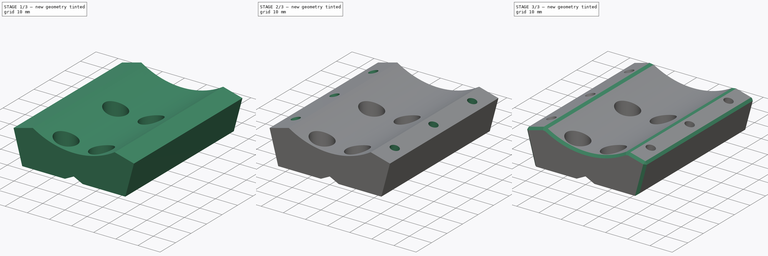
[diagram: build sequence overview — one tinted view per stage of 3, left to right]
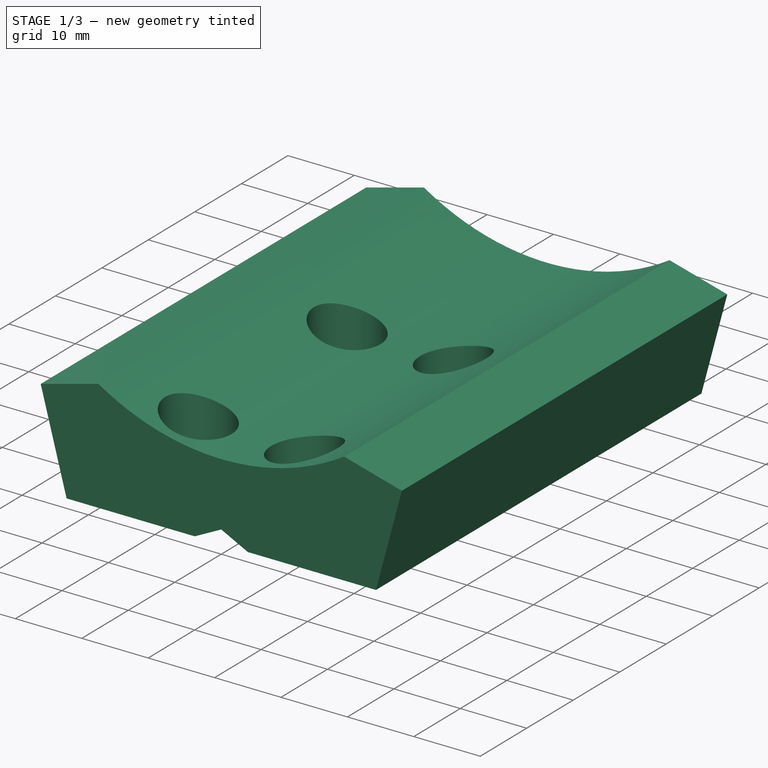
[diagram: stage 1 of 3 — iso view after this stage's code; geometry added in this stage tinted green]
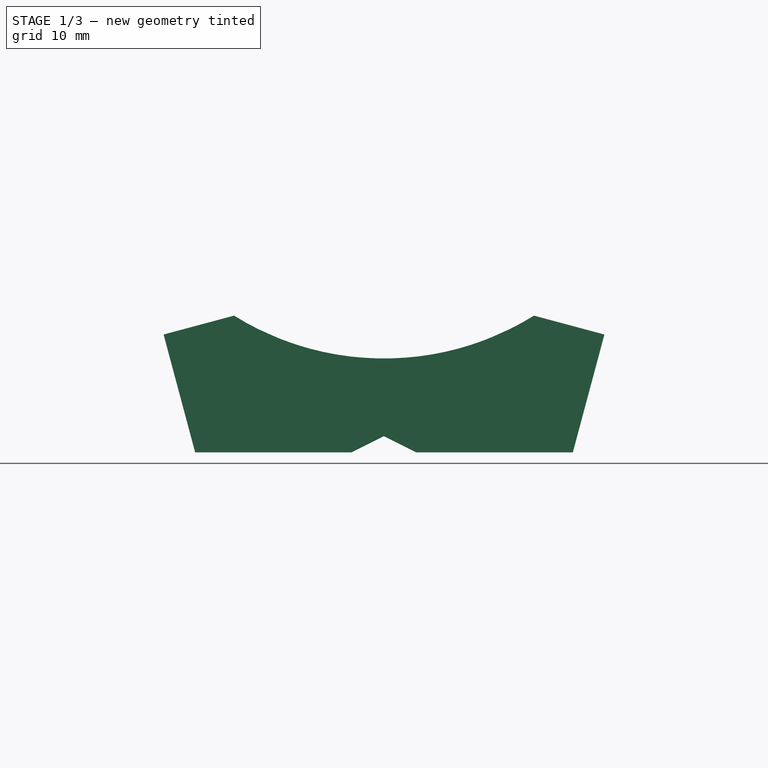
[diagram: stage 1 of 3 — front view after this stage's code; geometry added in this stage tinted green]
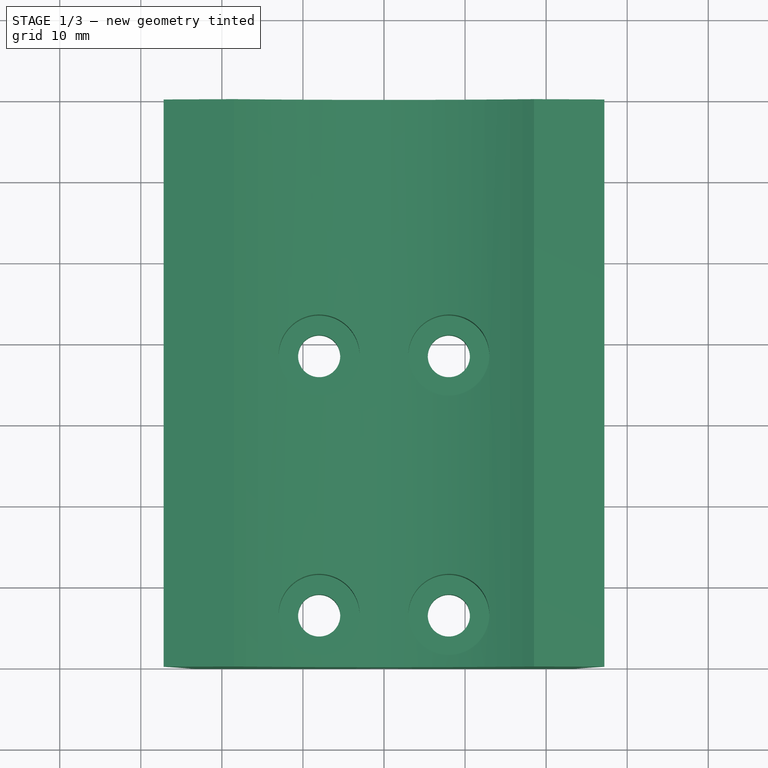
[diagram: stage 1 of 3 — top view after this stage's code; geometry added in this stage tinted green]
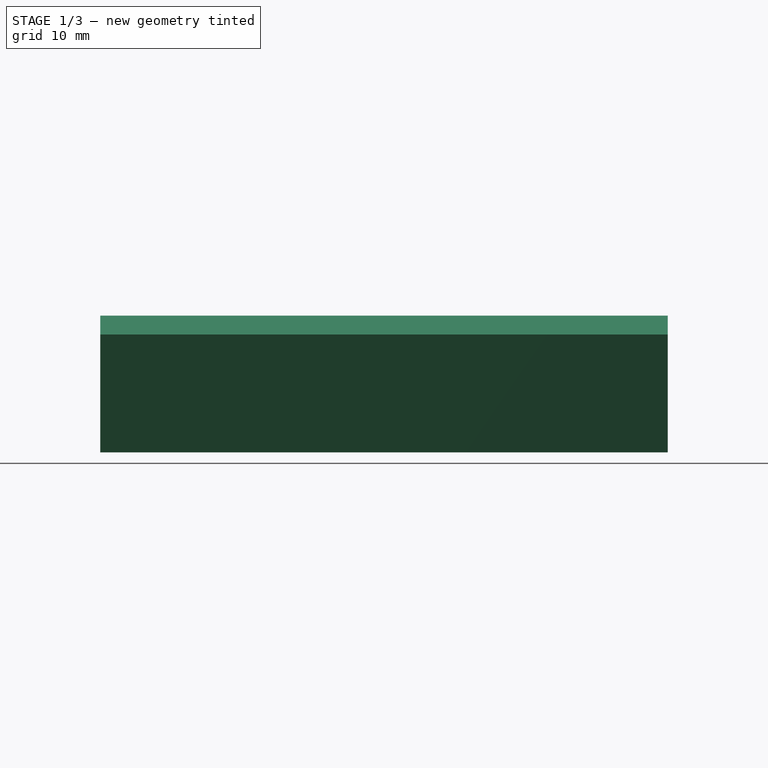
[diagram: stage 1 of 3 — right view after this stage's code; geometry added in this stage tinted green]
FCSTD DOCUMENT  (FreeCAD 0.19R24267 +99 (Git))
Label: tool_mount
License: All rights reserved
LicenseURL: http://en.wikipedia.org/wiki/All_rights_reserved
objects: Sketcher::SketchObject×7, PartDesign::Pocket×6, PartDesign::Plane×2, PartDesign::Pad×1, PartDesign::Chamfer×1, PartDesign::Body×1
note: 26 computed .brp shape members not serialized (recipe doc carries the construction recipe); baked Part::Feature solids carry a one-line shape summary decoded from their .brp

FEATURE [Sketcher::SketchObject] Sketch
  FullyConstrained = true
  MapMode = 5
  Placement = pos=(0,0,0) rot=(1,0,0;1.5708rad)
  Support = -> [XZ_Plane]
  sketch-geometry (15):
    g0: LineSegment StartX=-12.5 StartY=0 StartZ=0 EndX=-4 EndY=0 EndZ=0
    g1: LineSegment StartX=-4 StartY=0 StartZ=0 EndX=0 EndY=2 EndZ=0
    g2: LineSegment StartX=0 StartY=2 StartZ=0 EndX=4 EndY=0 EndZ=0
    g3: LineSegment StartX=4 StartY=0 StartZ=0 EndX=12.5 EndY=0 EndZ=0
    g4: ArcOfCircle CenterX=0 CenterY=46.5809 CenterZ=0 NormalX=0 NormalY=0 NormalZ=1 AngleXU=0 Radius=35 StartAngle=4.15547 EndAngle=5.26931
    g5: LineSegment StartX=-18.5 StartY=16.8698 StartZ=0 EndX=18.5 EndY=16.8698 EndZ=0
    g6: LineSegment StartX=-18.5 StartY=16.8698 StartZ=0 EndX=-27.1933 EndY=14.5404 EndZ=0
    g7: LineSegment StartX=18.5 StartY=16.8698 StartZ=0 EndX=27.1933 EndY=14.5404 EndZ=0
    g8: LineSegment StartX=-27.1933 StartY=14.5404 StartZ=0 EndX=-23.2972 EndY=-1.8e-15 EndZ=0
    g9: LineSegment StartX=27.1933 StartY=14.5404 StartZ=0 EndX=23.2972 EndY=0 EndZ=0
    g10: LineSegment StartX=12.5 StartY=0 StartZ=0 EndX=23.2972 EndY=0 EndZ=0
    g11: LineSegment StartX=-12.5 StartY=0 StartZ=0 EndX=-23.2972 EndY=-1.8e-15 EndZ=0
    g12: Circle CenterX=-8 CenterY=0 CenterZ=0 NormalX=0 NormalY=0 NormalZ=1 AngleXU=0 Radius=2.6
    g13: Circle CenterX=8 CenterY=0 CenterZ=0 NormalX=0 NormalY=0 NormalZ=1 AngleXU=0 Radius=2.6
    g14: LineSegment StartX=-5.4 StartY=0 StartZ=0 EndX=-5.4 EndY=12 EndZ=0
  constraints (44):
    c: PointOnObject(g0,g-1)
    c: PointOnObject(g0,g-1)
    c: Coincident(g1,g0)
    c: PointOnObject(g1,g-2)
    c: Coincident(g2,g1)
    c: PointOnObject(g2,g-1)
    c: Coincident(g3,g2)
    c: DistanceX(g0,g3) = 25
    c: Symmetric(g0,g3,g-2)
    c: Equal(g1,g2)
    c: DistanceY(g-1,g1) = 2
    c: DistanceX(g0,g2) = 8
    c: PointOnObject(g4,g-2)
    c: Radius(g4) = 35
    c: Horizontal(g5)
    c: DistanceX(g5,g5) = 37
    c: Coincident(g4,g5)
    c: Coincident(g4,g5)
    c: Coincident(g6,g4)
    c: Coincident(g7,g4)
    c: Distance(g6) = 9
    c: Equal(g6,g7)
    c: Angle(g6,g5) = 2.87979
    c: Angle(g5,g7) = 2.87979
    c: Coincident(g8,g6)
    c: Coincident(g9,g7)
    c: Perpendicular(g6,g8)
    c: Equal(g9,g8)
    c: Perpendicular(g9,g7)
    c: Horizontal(g9,g3)
    c: Coincident(g10,g3)
    c: Coincident(g10,g9)
    c: Coincident(g11,g0)
    c: Coincident(g11,g8)
    c: PointOnObject(g12,g0)
    c: Diameter(g12) = 5.2
    c: Equal(g13,g12)
    c: DistanceX(g12,g13) = 16
    c: PointOnObject(g14,g12)
    c: PointOnObject(g14,g4)
    c: Vertical(g14)
    c: PointOnObject(g14,g0)
    c: DistanceY(g14,g14) = 12
    c: Symmetric(g12,g13,g-2)
FEATURE [PartDesign::Pad] Pad
  Direction = (1,1,1)
  Length = 70
  Length2 = 100
  Placement = pos=(0,0,0) rot=(1,0,0;1.5708rad)
  Profile = -> Sketch
  Type = 0
FEATURE [Sketcher::SketchObject] Sketch001
  ExternalGeometry = -> [Pad]
  FullyConstrained = true
  MapMode = 5
  Placement = pos=(0,0,0) rot=(1,0,0;3.14159rad)
  Support = -> [Pad]
  sketch-geometry (5):
    g0: Circle CenterX=-8 CenterY=63.5 CenterZ=0 NormalX=0 NormalY=0 NormalZ=1 AngleXU=0 Radius=2.6
    g1: Circle CenterX=8 CenterY=63.5 CenterZ=0 NormalX=0 NormalY=0 NormalZ=1 AngleXU=0 Radius=2.6
    g2: Circle CenterX=-8 CenterY=31.5 CenterZ=0 NormalX=0 NormalY=0 NormalZ=1 AngleXU=0 Radius=2.6
    g3: Circle CenterX=8 CenterY=31.5 CenterZ=0 NormalX=0 NormalY=0 NormalZ=1 AngleXU=0 Radius=2.6
    g4: Circle CenterX=-8 CenterY=63.5 CenterZ=0 NormalX=0 NormalY=0 NormalZ=1 AngleXU=0 Radius=6.5
  constraints (13):
    c: Diameter(g0) = 5.2
    c: Equal(g0,g1)
    c: Equal(g1,g2)
    c: Equal(g2,g3)
    c: Symmetric(g0,g1,g-2)
    c: Vertical(g0,g2)
    c: Horizontal(g2,g3)
    c: Vertical(g1,g3)
    c: DistanceX(g0,g1) = 16
    c: DistanceY(g2,g0) = 32
    c: Coincident(g4,g0)
    c: Diameter(g4) = 13
    c: Tangent(g4,g-3)
FEATURE [PartDesign::Pocket] Pocket
  BaseFeature = -> Pad
  Length = 5
  Length2 = 100
  Placement = pos=(0,0,0) rot=(1,0,0;1.5708rad)
  Profile = -> Sketch001
  Type = 1
FEATURE [Sketcher::SketchObject] Sketch002
  ExternalGeometry = -> [Pocket]
  FullyConstrained = true
  MapMode = 5
  Placement = pos=(0,0,5) rot=(1,0,0;3.14159rad)
  sketch-geometry (4):
    g0: Circle CenterX=-8 CenterY=63.5 CenterZ=0 NormalX=0 NormalY=0 NormalZ=1 AngleXU=0 Radius=5
    g1: Circle CenterX=8 CenterY=63.5 CenterZ=0 NormalX=0 NormalY=0 NormalZ=1 AngleXU=0 Radius=5
    g2: Circle CenterX=8 CenterY=31.5 CenterZ=0 NormalX=0 NormalY=0 NormalZ=1 AngleXU=0 Radius=5
    g3: Circle CenterX=-8 CenterY=31.5 CenterZ=0 NormalX=0 NormalY=0 NormalZ=1 AngleXU=0 Radius=5
  constraints (8):
    c: Coincident(g0,g-3)
    c: Coincident(g1,g-4)
    c: Coincident(g2,g-6)
    c: Coincident(g3,g-5)
    c: Diameter(g0) = 10
    c: Equal(g0,g1)
    c: Equal(g1,g3)
    c: Equal(g3,g2)
FEATURE [PartDesign::Pocket] Pocket001
  BaseFeature = -> Pocket
  Length = 5
  Length2 = 100
  Placement = pos=(0,0,0) rot=(1,0,0;1.5708rad)
  Profile = -> Sketch002
  Type = 1
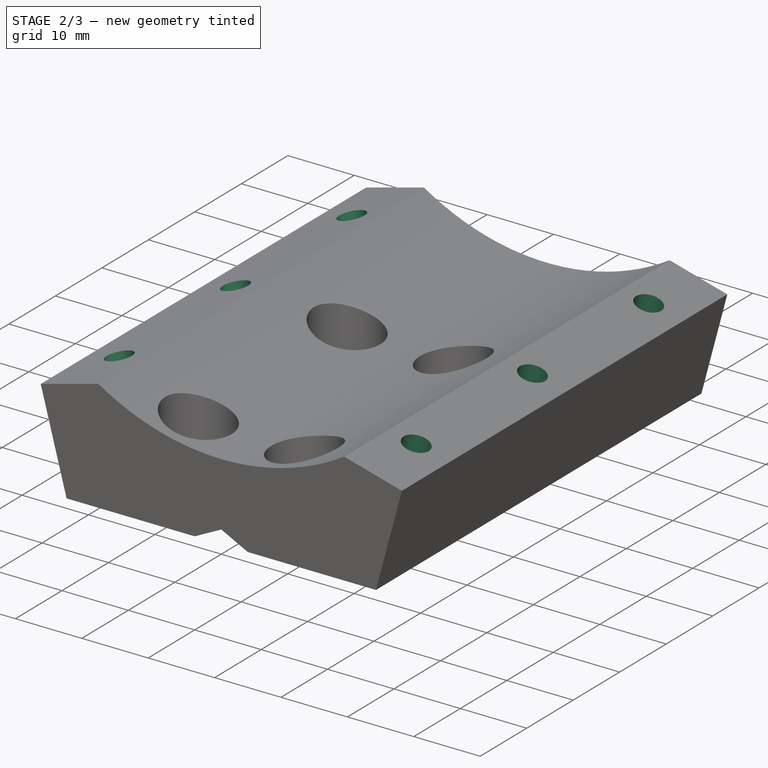
[diagram: stage 2 of 3 — iso view after this stage's code; geometry added in this stage tinted green]
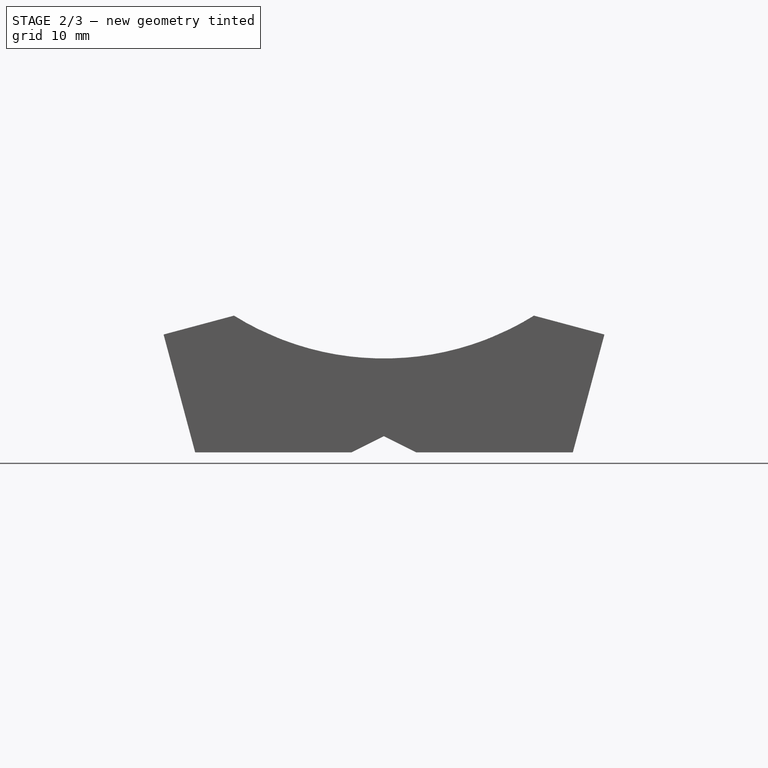
[diagram: stage 2 of 3 — front view after this stage's code; geometry added in this stage tinted green]
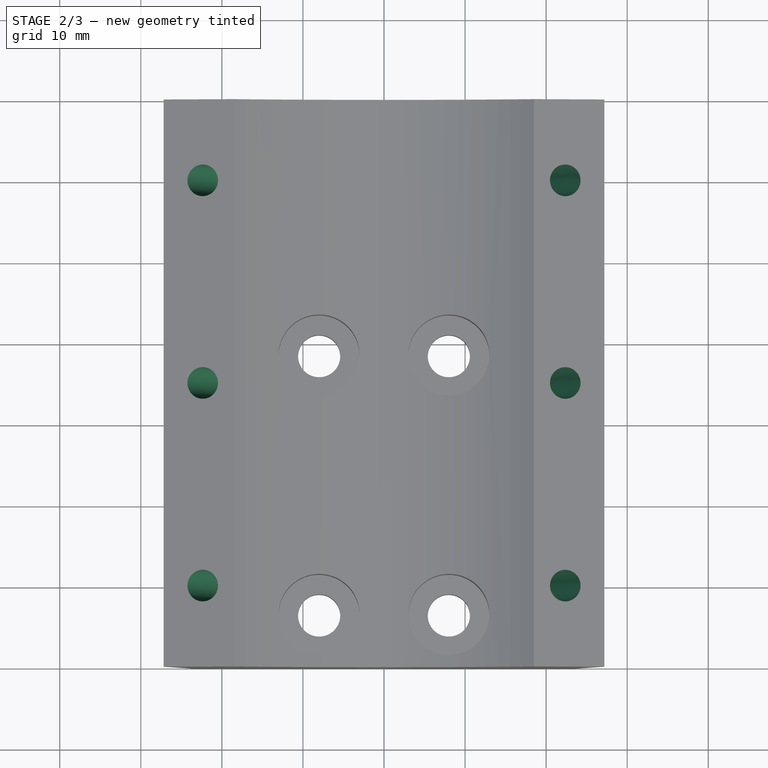
[diagram: stage 2 of 3 — top view after this stage's code; geometry added in this stage tinted green]
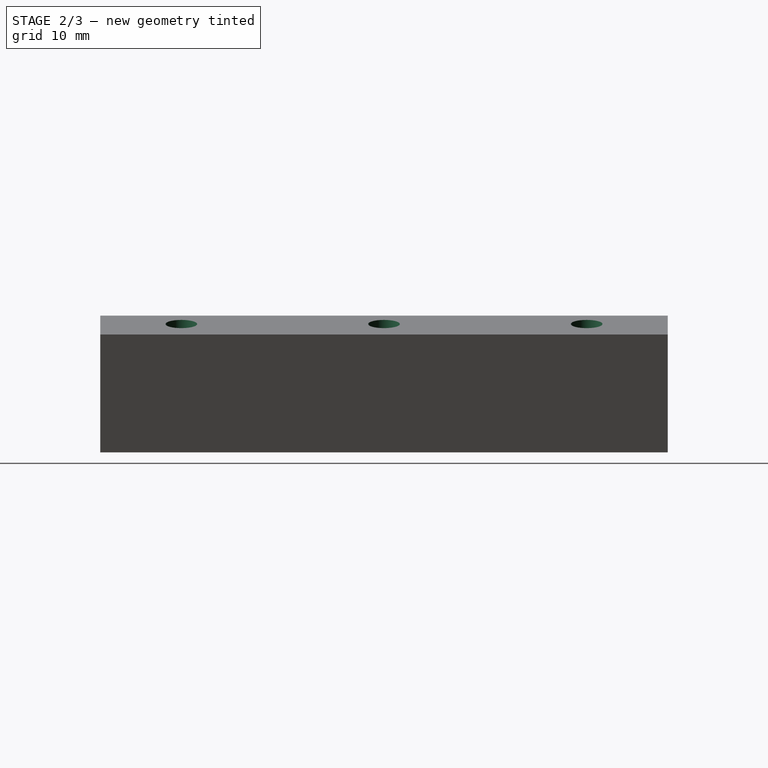
[diagram: stage 2 of 3 — right view after this stage's code; geometry added in this stage tinted green]
FEATURE [Sketcher::SketchObject] Sketch003
  ExternalGeometry = -> [Pocket001]
  FullyConstrained = true
  MapMode = 5
  Placement = pos=(-5.45672,3.17e-14,20.3647) rot=(-0.130526,0,0.991445;3.14159rad)
  Support = -> [Pocket001]
  sketch-geometry (5):
    g0: LineSegment StartX=17.5034 StartY=70 StartZ=0 EndX=17.5034 EndY=0 EndZ=0
    g1: LineSegment StartX=13.5034 StartY=35 StartZ=0 EndX=22.5034 EndY=35 EndZ=0
    g2: Circle CenterX=17.5034 CenterY=60 CenterZ=0 NormalX=0 NormalY=0 NormalZ=1 AngleXU=0 Radius=1.95
    g3: Circle CenterX=17.5034 CenterY=35 CenterZ=0 NormalX=0 NormalY=0 NormalZ=1 AngleXU=0 Radius=1.95
    g4: Circle CenterX=17.5034 CenterY=10 CenterZ=0 NormalX=0 NormalY=0 NormalZ=1 AngleXU=0 Radius=1.95
  constraints (16):
    c: PointOnObject(g0,g-1)
    c: Vertical(g0)
    c: Horizontal(g1)
    c: Symmetric(g-4,g-4,g1)
    c: Vertical(g1,g-3)
    c: PointOnObject(g2,g0)
    c: Diameter(g2) = 3.9
    c: PointOnObject(g3,g0)
    c: PointOnObject(g4,g0)
    c: Equal(g2,g3)
    c: Equal(g3,g4)
    c: DistanceY(g3,g2) = 25
    c: DistanceY(g4,g3) = 25
    c: PointOnObject(g3,g1)
    c: PointOnObject(g0,g-3)
    c: DistanceX(g-4,g0) = 4
FEATURE [PartDesign::Pocket] Pocket002
  BaseFeature = -> Pocket001
  Length = 5
  Length2 = 100
  Placement = pos=(0,0,0) rot=(1,0,0;1.5708rad)
  Profile = -> Sketch003
  Type = 1
FEATURE [Sketcher::SketchObject] Sketch004
  ExternalGeometry = -> [Pocket002]
  FullyConstrained = true
  MapMode = 5
  Placement = pos=(5.45672,4.07e-14,20.3647) rot=(0.130526,0,0.991445;3.14159rad)
  Support = -> [Pocket002]
  sketch-geometry (5):
    g0: LineSegment StartX=-17.5034 StartY=70 StartZ=0 EndX=-17.5034 EndY=0 EndZ=0
    g1: LineSegment StartX=-13.5034 StartY=35 StartZ=0 EndX=-22.5034 EndY=35 EndZ=0
    g2: Circle CenterX=-17.5034 CenterY=60 CenterZ=0 NormalX=0 NormalY=0 NormalZ=1 AngleXU=0 Radius=1.95
    g3: Circle CenterX=-17.5034 CenterY=35 CenterZ=0 NormalX=0 NormalY=0 NormalZ=1 AngleXU=0 Radius=1.95
    g4: Circle CenterX=-17.5034 CenterY=10 CenterZ=0 NormalX=0 NormalY=0 NormalZ=1 AngleXU=0 Radius=1.95
  constraints (16):
    c: Vertical(g0)
    c: Horizontal(g1)
    c: Horizontal(g0,g-4)
    c: Symmetric(g-4,g-4,g1)
    c: Vertical(g1,g-3)
    c: PointOnObject(g2,g0)
    c: PointOnObject(g3,g0)
    c: PointOnObject(g4,g0)
    c: Diameter(g2) = 3.9
    c: Equal(g2,g3)
    c: Equal(g3,g4)
    c: DistanceY(g3,g2) = 25
    c: DistanceY(g4,g3) = 25
    c: PointOnObject(g3,g1)
    c: PointOnObject(g0,g-3)
    c: DistanceX(g0,g-4) = 4
FEATURE [PartDesign::Pocket] Pocket003
  BaseFeature = -> Pocket002
  Length = 5
  Length2 = 100
  Placement = pos=(0,0,0) rot=(1,0,0;1.5708rad)
  Profile = -> Sketch004
  Type = 1
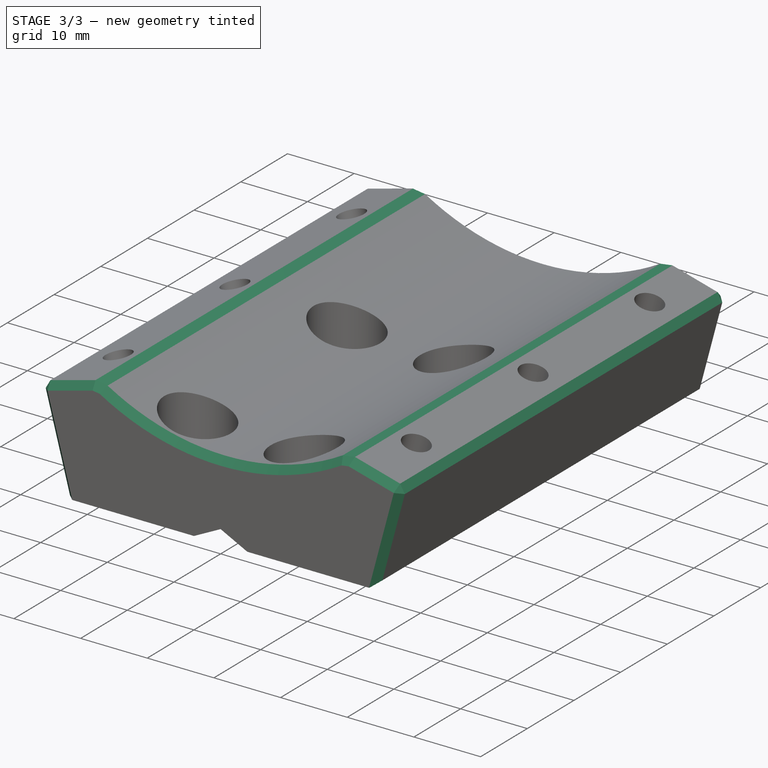
[diagram: stage 3 of 3 — iso view after this stage's code; geometry added in this stage tinted green]
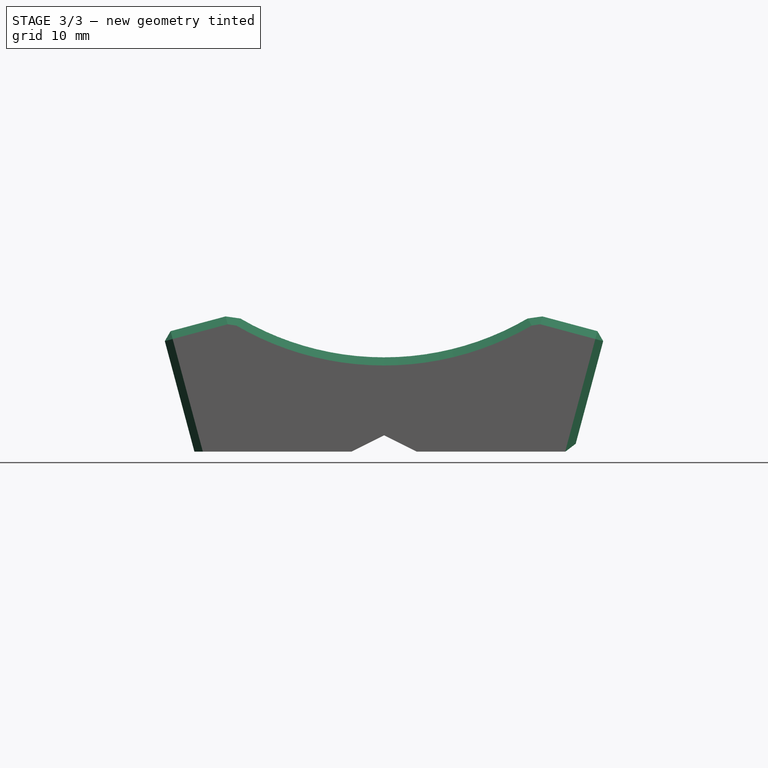
[diagram: stage 3 of 3 — front view after this stage's code; geometry added in this stage tinted green]
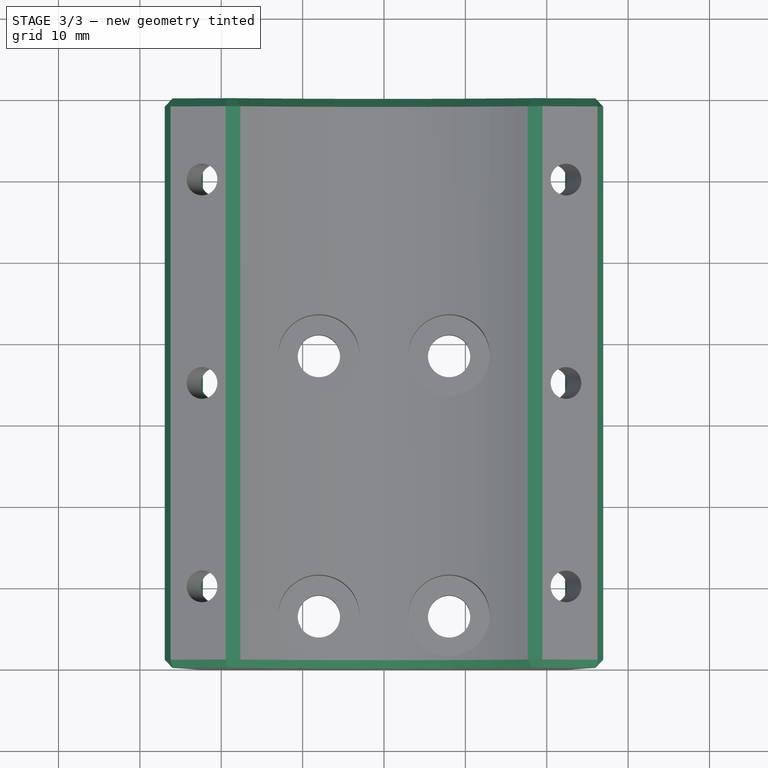
[diagram: stage 3 of 3 — top view after this stage's code; geometry added in this stage tinted green]
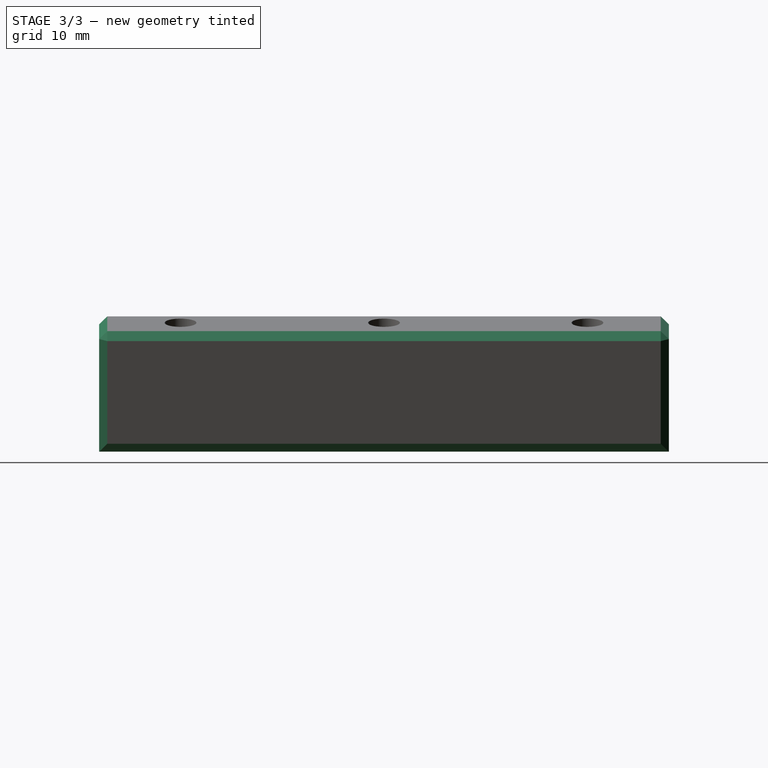
[diagram: stage 3 of 3 — right view after this stage's code; geometry added in this stage tinted green]
FEATURE [PartDesign::Plane] DatumPlane
  AttachmentOffset = pos=(0,0,-6.75) rot=(0,0,1;0rad)
  Length = 81.2479
  MapMode = 5
  Placement = pos=(3.70969,3.38e-14,13.8447) rot=(0.130526,0,0.991445;3.14159rad)
  ResizeMode = 0
  Support = -> [Pocket003]
  Width = 110.773
FEATURE [Sketcher::SketchObject] Sketch005
  ExternalGeometry = -> [Pocket003]
  FullyConstrained = true
  MapMode = 5
  Placement = pos=(3.70969,3.38e-14,13.8447) rot=(0.130526,0,0.991445;3.14159rad)
  Support = -> [DatumPlane]
  sketch-geometry (21):
    g0: LineSegment StartX=-13.5034 StartY=62.3094 StartZ=0 EndX=-17.5034 EndY=64.6188 EndZ=0
    g1: LineSegment StartX=-17.5034 StartY=64.6188 StartZ=0 EndX=-21.5034 EndY=62.3094 EndZ=0
    g2: LineSegment StartX=-21.5034 StartY=62.3094 StartZ=0 EndX=-21.5034 EndY=57.6906 EndZ=0
    g3: LineSegment StartX=-21.5034 StartY=57.6906 StartZ=0 EndX=-17.5034 EndY=55.3812 EndZ=0
    g4: LineSegment StartX=-17.5034 StartY=55.3812 StartZ=0 EndX=-13.5034 EndY=57.6906 EndZ=0
    g5: LineSegment StartX=-13.5034 StartY=57.6906 StartZ=0 EndX=-13.5034 EndY=62.3094 EndZ=0
    g6: Circle CenterX=-17.5034 CenterY=60 CenterZ=0 NormalX=0 NormalY=0 NormalZ=1 AngleXU=0 Radius=4.6188
    g7: LineSegment StartX=-13.5034 StartY=37.3094 StartZ=0 EndX=-17.5034 EndY=39.6188 EndZ=0
    g8: LineSegment StartX=-17.5034 StartY=39.6188 StartZ=0 EndX=-21.5034 EndY=37.3094 EndZ=0
    g9: LineSegment StartX=-21.5034 StartY=37.3094 StartZ=0 EndX=-21.5034 EndY=32.6906 EndZ=0
    g10: LineSegment StartX=-21.5034 StartY=32.6906 StartZ=0 EndX=-17.5034 EndY=30.3812 EndZ=0
    g11: LineSegment StartX=-17.5034 StartY=30.3812 StartZ=0 EndX=-13.5034 EndY=32.6906 EndZ=0
    g12: LineSegment StartX=-13.5034 StartY=32.6906 StartZ=0 EndX=-13.5034 EndY=37.3094 EndZ=0
    g13: Circle CenterX=-17.5034 CenterY=35 CenterZ=0 NormalX=0 NormalY=0 NormalZ=1 AngleXU=0 Radius=4.6188
    g14: LineSegment StartX=-13.5034 StartY=12.3094 StartZ=0 EndX=-17.5034 EndY=14.6188 EndZ=0
    g15: LineSegment StartX=-17.5034 StartY=14.6188 StartZ=0 EndX=-21.5034 EndY=12.3094 EndZ=0
    g16: LineSegment StartX=-21.5034 StartY=12.3094 StartZ=0 EndX=-21.5034 EndY=7.6906 EndZ=0
    g17: LineSegment StartX=-21.5034 StartY=7.6906 StartZ=0 EndX=-17.5034 EndY=5.3812 EndZ=0
    g18: LineSegment StartX=-17.5034 StartY=5.3812 StartZ=0 EndX=-13.5034 EndY=7.6906 EndZ=0
    g19: LineSegment StartX=-13.5034 StartY=7.6906 StartZ=0 EndX=-13.5034 EndY=12.3094 EndZ=0
    g20: Circle CenterX=-17.5034 CenterY=10 CenterZ=0 NormalX=0 NormalY=0 NormalZ=1 AngleXU=0 Radius=4.6188
  constraints (48):
    c: Coincident(g0,g1)
    c: Coincident(g1,g2)
    c: Coincident(g2,g3)
    c: Coincident(g3,g4)
    c: Coincident(g4,g5)
    c: Coincident(g5,g0)
    c: Equal(g0, g1-g5) x5
    c: PointOnObject(g0,g6)
    c: PointOnObject(g1,g6)
    c: PointOnObject(g2,g6)
    c: PointOnObject(g3,g6)
    c: PointOnObject(g4,g6)
    c: PointOnObject(g5,g6)
    c: Coincident(g6,g-3)
    c: Coincident(g7,g8)
    c: Coincident(g8,g9)
    c: Coincident(g9,g10)
    c: Coincident(g10,g11)
    c: Coincident(g11,g12)
    c: Coincident(g12,g7)
    c: Equal(g7, g8-g12) x5
    c: PointOnObject(g7,g13)
    c: PointOnObject(g8,g13)
    c: PointOnObject(g9,g13)
    c: PointOnObject(g10,g13)
    c: PointOnObject(g11,g13)
    c: PointOnObject(g12,g13)
    c: Coincident(g13,g-4)
    c: Coincident(g14,g15)
    c: Coincident(g15,g16)
    c: Coincident(g16,g17)
    c: Coincident(g17,g18)
    c: Coincident(g18,g19)
    c: Coincident(g19,g14)
    c: Equal(g14, g15-g19) x5
    c: PointOnObject(g14,g20)
    c: PointOnObject(g15,g20)
    c: PointOnObject(g16,g20)
    c: PointOnObject(g17,g20)
    c: PointOnObject(g18,g20)
    c: PointOnObject(g19,g20)
    c: Coincident(g20,g-5)
    c: Vertical(g5)
    c: Vertical(g12)
    c: Vertical(g19)
    c: DistanceX(g1,g0) = 8
    c: Vertical(g2,g8)
    c: Vertical(g9,g15)
FEATURE [PartDesign::Pocket] Pocket004
  BaseFeature = -> Pocket003
  Length = 5
  Length2 = 100
  Placement = pos=(0,0,0) rot=(1,0,0;1.5708rad)
  Profile = -> Sketch005
  Type = 1
FEATURE [PartDesign::Plane] DatumPlane001
  AttachmentOffset = pos=(0,0,-6.75) rot=(0,0,1;0rad)
  Length = 81.2479
  MapMode = 5
  Placement = pos=(-3.70969,4e-14,13.8447) rot=(-0.130526,0,0.991445;3.14159rad)
  ResizeMode = 0
  Support = -> [Pocket004]
  Width = 110.773
FEATURE [Sketcher::SketchObject] Sketch006
  ExternalGeometry = -> [Pocket004]
  FullyConstrained = true
  MapMode = 5
  Placement = pos=(-3.70969,4e-14,13.8447) rot=(-0.130526,0,0.991445;3.14159rad)
  Support = -> [DatumPlane001]
  sketch-geometry (21):
    g0: LineSegment StartX=21.5034 StartY=62.3094 StartZ=0 EndX=17.5034 EndY=64.6188 EndZ=0
    g1: LineSegment StartX=17.5034 StartY=64.6188 StartZ=0 EndX=13.5034 EndY=62.3094 EndZ=0
    g2: LineSegment StartX=13.5034 StartY=62.3094 StartZ=0 EndX=13.5034 EndY=57.6906 EndZ=0
    g3: LineSegment StartX=13.5034 StartY=57.6906 StartZ=0 EndX=17.5034 EndY=55.3812 EndZ=0
    g4: LineSegment StartX=17.5034 StartY=55.3812 StartZ=0 EndX=21.5034 EndY=57.6906 EndZ=0
    g5: LineSegment StartX=21.5034 StartY=57.6906 StartZ=0 EndX=21.5034 EndY=62.3094 EndZ=0
    g6: Circle CenterX=17.5034 CenterY=60 CenterZ=0 NormalX=0 NormalY=0 NormalZ=1 AngleXU=0 Radius=4.6188
    g7: LineSegment StartX=21.5034 StartY=37.3094 StartZ=0 EndX=17.5034 EndY=39.6188 EndZ=0
    g8: LineSegment StartX=17.5034 StartY=39.6188 StartZ=0 EndX=13.5034 EndY=37.3094 EndZ=0
    g9: LineSegment StartX=13.5034 StartY=37.3094 StartZ=0 EndX=13.5034 EndY=32.6906 EndZ=0
    g10: LineSegment StartX=13.5034 StartY=32.6906 StartZ=0 EndX=17.5034 EndY=30.3812 EndZ=0
    g11: LineSegment StartX=17.5034 StartY=30.3812 StartZ=0 EndX=21.5034 EndY=32.6906 EndZ=0
    g12: LineSegment StartX=21.5034 StartY=32.6906 StartZ=0 EndX=21.5034 EndY=37.3094 EndZ=0
    g13: Circle CenterX=17.5034 CenterY=35 CenterZ=0 NormalX=0 NormalY=0 NormalZ=1 AngleXU=0 Radius=4.6188
    g14: LineSegment StartX=21.5034 StartY=12.3094 StartZ=0 EndX=17.5034 EndY=14.6188 EndZ=0
    g15: LineSegment StartX=17.5034 StartY=14.6188 StartZ=0 EndX=13.5034 EndY=12.3094 EndZ=0
    g16: LineSegment StartX=13.5034 StartY=12.3094 StartZ=0 EndX=13.5034 EndY=7.6906 EndZ=0
    g17: LineSegment StartX=13.5034 StartY=7.6906 StartZ=0 EndX=17.5034 EndY=5.3812 EndZ=0
    g18: LineSegment StartX=17.5034 StartY=5.3812 StartZ=0 EndX=21.5034 EndY=7.6906 EndZ=0
    g19: LineSegment StartX=21.5034 StartY=7.6906 StartZ=0 EndX=21.5034 EndY=12.3094 EndZ=0
    g20: Circle CenterX=17.5034 CenterY=10 CenterZ=0 NormalX=0 NormalY=0 NormalZ=1 AngleXU=0 Radius=4.6188
  constraints (48):
    c: Coincident(g0,g1)
    c: Coincident(g1,g2)
    c: Coincident(g2,g3)
    c: Coincident(g3,g4)
    c: Coincident(g4,g5)
    c: Coincident(g5,g0)
    c: Equal(g0, g1-g5) x5
    c: PointOnObject(g0,g6)
    c: PointOnObject(g1,g6)
    c: PointOnObject(g2,g6)
    c: PointOnObject(g3,g6)
    c: PointOnObject(g4,g6)
    c: PointOnObject(g5,g6)
    c: Coincident(g6,g-3)
    c: Coincident(g7,g8)
    c: Coincident(g8,g9)
    c: Coincident(g9,g10)
    c: Coincident(g10,g11)
    c: Coincident(g11,g12)
    c: Coincident(g12,g7)
    c: Equal(g7, g8-g12) x5
    c: PointOnObject(g7,g13)
    c: PointOnObject(g8,g13)
    c: PointOnObject(g9,g13)
    c: PointOnObject(g10,g13)
    c: PointOnObject(g11,g13)
    c: PointOnObject(g12,g13)
    c: Coincident(g13,g-4)
    c: Coincident(g14,g15)
    c: Coincident(g15,g16)
    c: Coincident(g16,g17)
    c: Coincident(g17,g18)
    c: Coincident(g18,g19)
    c: Coincident(g19,g14)
    c: Equal(g14, g15-g19) x5
    c: PointOnObject(g14,g20)
    c: PointOnObject(g15,g20)
    c: PointOnObject(g16,g20)
    c: PointOnObject(g17,g20)
    c: PointOnObject(g18,g20)
    c: PointOnObject(g19,g20)
    c: Coincident(g20,g-5)
    c: Vertical(g5)
    c: Vertical(g12)
    c: Vertical(g19)
    c: DistanceX(g1,g0) = 8
    c: Vertical(g4,g7)
    c: Vertical(g11,g14)
FEATURE [PartDesign::Pocket] Pocket005
  BaseFeature = -> Pocket004
  Length = 5
  Length2 = 100
  Placement = pos=(0,0,0) rot=(1,0,0;1.5708rad)
  Profile = -> Sketch006
  Type = 1
FEATURE [PartDesign::Chamfer] Chamfer
  Angle = 45
  Base = -> Pocket005 [Edge45,Edge51,Edge44,Edge116,Edge35,Edge36,Edge42,Edge112,Edge111,Edge33,Edge41,Edge32,Edge92,Edge34,Edge43]
  BaseFeature = -> Pocket005
  ChamferType = 0
  FlipDirection = false
  Placement = pos=(0,0,0) rot=(1,0,0;1.5708rad)
  Size = 1
  Size2 = 1
  SupportTransform = false
FEATURE [PartDesign::Body] Body
  Group = -> [Sketch,Pad,Sketch001,Pocket,Sketch002,Pocket001,Sketch003,Pocket002,Sketch004,Pocket003,DatumPlane,Sketch005,Pocket004,DatumPlane001,Sketch006,Pocket005,Chamfer]
  Origin = -> Origin
  Tip = -> Chamfer
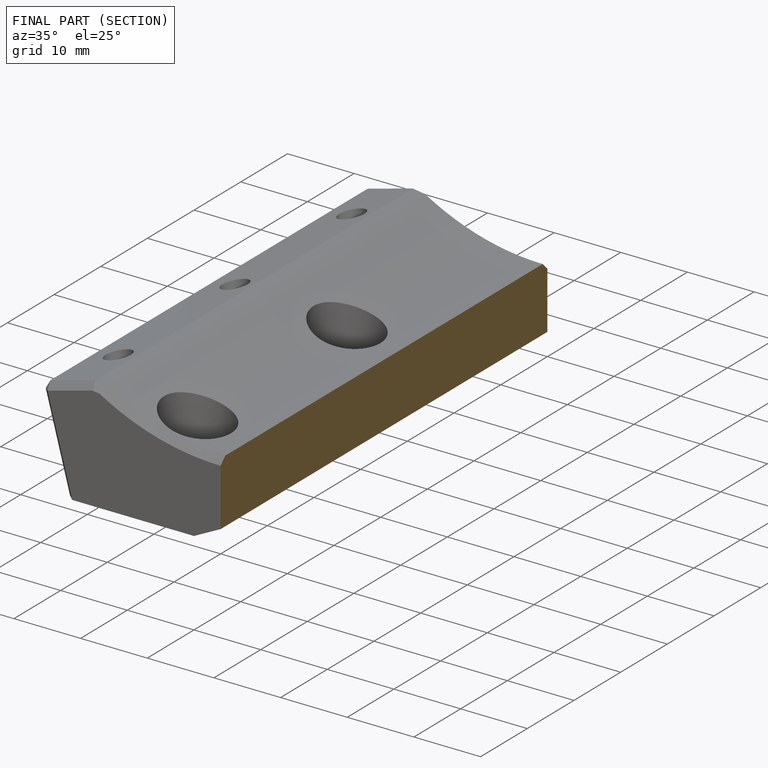
[diagram: finished part — half-section view (interior)]
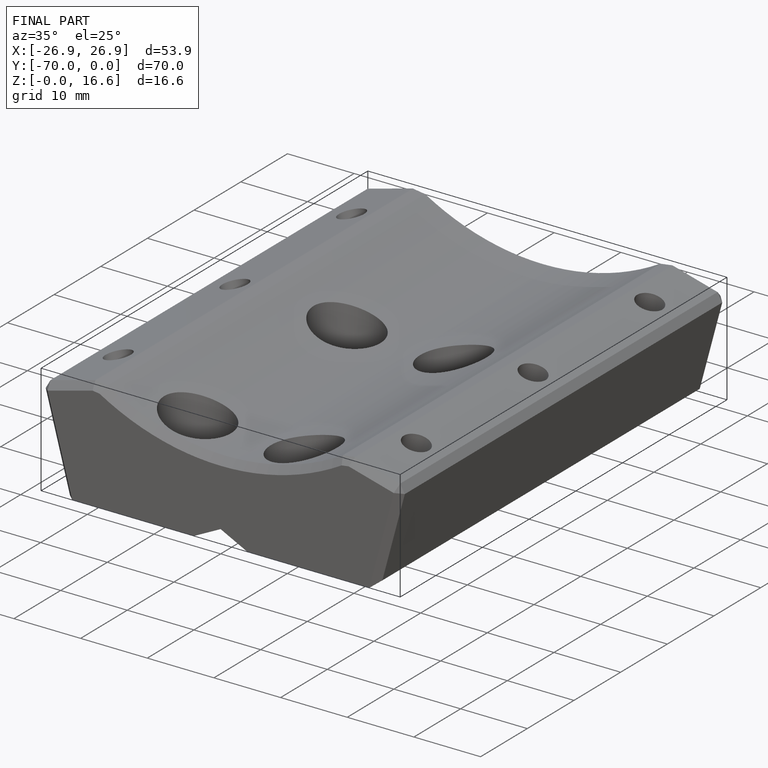
[diagram: finished part — iso view with bounding-box wireframe]
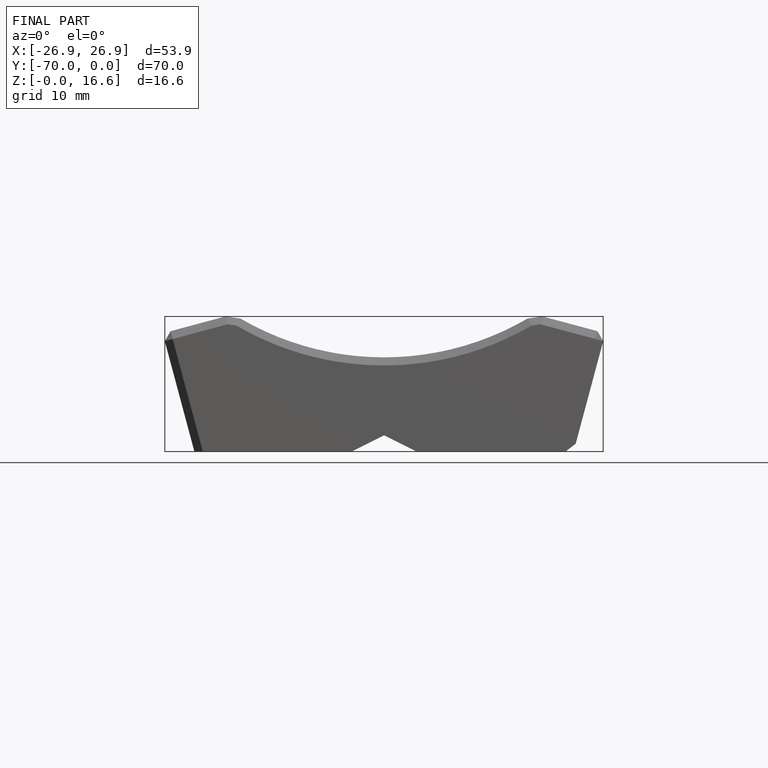
[diagram: finished part — front view with bounding-box wireframe]
